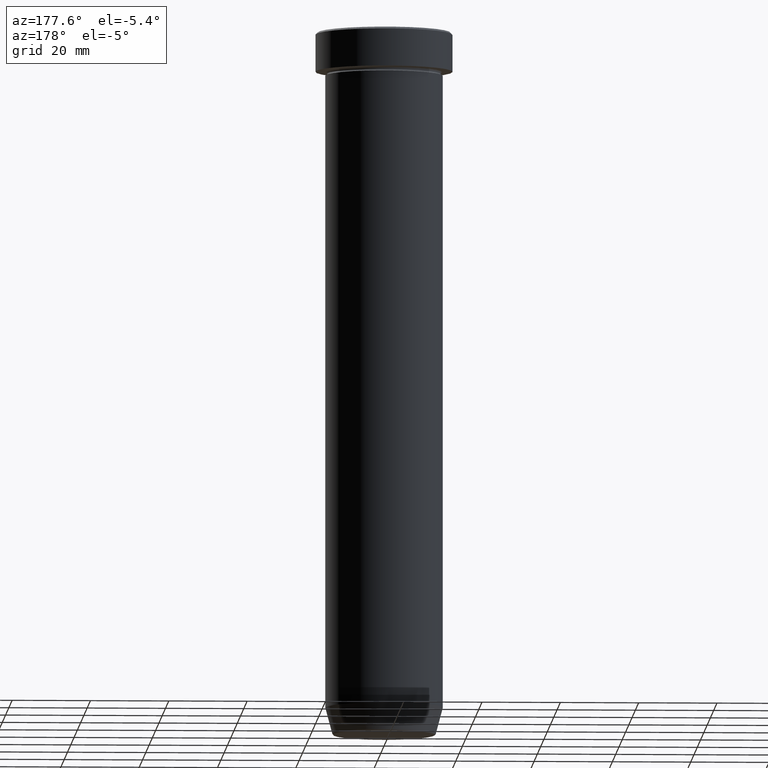
[diagram: clean part render]
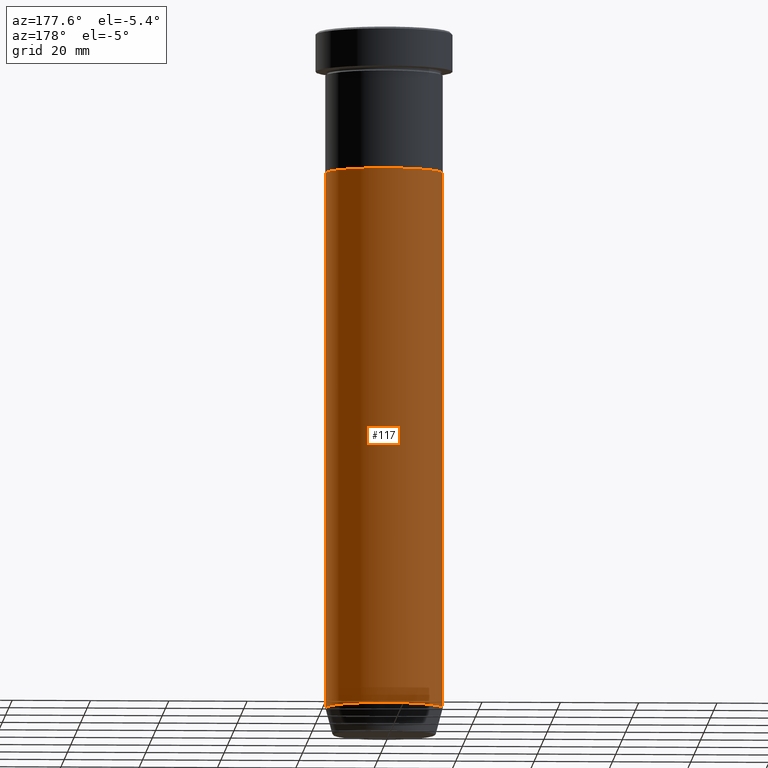
[diagram: same view with one face highlighted and labeled with its STEP entity id]
A machine part, auxiliary view. The second image highlights one B-rep face of the part: STEP entity #117.
In plain terms, the highlighted cylindrical surface (partial cylindrical patch) has radius 15 mm, axis along (-0, -0, 1).
Its self-contained STEP definition (entity closure, byte-faithful):
#6 = VERTEX_POINT ( 'NONE', #60 ) ;
#24 = FACE_OUTER_BOUND ( 'NONE', #508, .T. ) ;
#43 = DIRECTION ( 'NONE',  ( -0.000000000000000000, -0.000000000000000000, 1.000000000000000000 ) ) ;
#60 = CARTESIAN_POINT ( 'NONE',  ( 15.00000000000000000, 0.000000000000000000, -36.00000000000000000 ) ) ;
#66 = VERTEX_POINT ( 'NONE', #308 ) ;
#75 = AXIS2_PLACEMENT_3D ( 'NONE', #166, #43, #535 ) ;
#81 = VECTOR ( 'NONE', #447, 1000.000000000000000 ) ;
#95 = ORIENTED_EDGE ( 'NONE', *, *, #323, .F. ) ;
#117 = ADVANCED_FACE ( 'NONE', ( #24 ), #581, .T. ) ;
#141 = DIRECTION ( 'NONE',  ( -0.000000000000000000, -0.000000000000000000, 1.000000000000000000 ) ) ;
#147 = VECTOR ( 'NONE', #401, 1000.000000000000000 ) ;
#166 = CARTESIAN_POINT ( 'NONE',  ( 0.000000000000000000, 0.000000000000000000, -36.00000000000000000 ) ) ;
#187 = ORIENTED_EDGE ( 'NONE', *, *, #434, .F. ) ;
#212 = DIRECTION ( 'NONE',  ( 1.000000000000000000, 0.000000000000000000, 0.000000000000000000 ) ) ;
#243 = CARTESIAN_POINT ( 'NONE',  ( 0.000000000000000000, 0.000000000000000000, -173.0000000000000000 ) ) ;
#260 = ORIENTED_EDGE ( 'NONE', *, *, #349, .T. ) ;
#278 = CARTESIAN_POINT ( 'NONE',  ( -15.00000000000000000, 1.836970198721029589E-15, 0.000000000000000000 ) ) ;
#308 = CARTESIAN_POINT ( 'NONE',  ( 15.00000000000000178, 0.000000000000000000, -173.0000000000000000 ) ) ;
#313 = LINE ( 'NONE', #403, #81 ) ;
#323 = EDGE_CURVE ( 'NONE', #6, #547, #457, .T. ) ;
#331 = CARTESIAN_POINT ( 'NONE',  ( -15.00000000000000000, 1.836970198721029589E-15, -36.00000000000000000 ) ) ;
#349 = EDGE_CURVE ( 'NONE', #444, #547, #585, .T. ) ;
#373 = DIRECTION ( 'NONE',  ( 1.000000000000000000, 0.000000000000000000, 0.000000000000000000 ) ) ;
#377 = ORIENTED_EDGE ( 'NONE', *, *, #463, .T. ) ;
#401 = DIRECTION ( 'NONE',  ( -0.000000000000000000, -0.000000000000000000, 1.000000000000000000 ) ) ;
#403 = CARTESIAN_POINT ( 'NONE',  ( 15.00000000000000000, 0.000000000000000000, 0.000000000000000000 ) ) ;
#434 = EDGE_CURVE ( 'NONE', #66, #6, #313, .T. ) ;
#441 = AXIS2_PLACEMENT_3D ( 'NONE', #529, #451, #212 ) ;
#444 = VERTEX_POINT ( 'NONE', #526 ) ;
#447 = DIRECTION ( 'NONE',  ( -0.000000000000000000, -0.000000000000000000, 1.000000000000000000 ) ) ;
#451 = DIRECTION ( 'NONE',  ( -0.000000000000000000, -0.000000000000000000, 1.000000000000000000 ) ) ;
#457 = CIRCLE ( 'NONE', #75, 15.00000000000000000 ) ;
#463 = EDGE_CURVE ( 'NONE', #66, #444, #466, .T. ) ;
#466 = CIRCLE ( 'NONE', #509, 15.00000000000000178 ) ;
#508 = EDGE_LOOP ( 'NONE', ( #377, #260, #95, #187 ) ) ;
#509 = AXIS2_PLACEMENT_3D ( 'NONE', #243, #141, #373 ) ;
#526 = CARTESIAN_POINT ( 'NONE',  ( -15.00000000000000355, 1.836970198721029983E-15, -173.0000000000000000 ) ) ;
#529 = CARTESIAN_POINT ( 'NONE',  ( 0.000000000000000000, 0.000000000000000000, 0.000000000000000000 ) ) ;
#535 = DIRECTION ( 'NONE',  ( 1.000000000000000000, 0.000000000000000000, 0.000000000000000000 ) ) ;
#547 = VERTEX_POINT ( 'NONE', #331 ) ;
#581 = CYLINDRICAL_SURFACE ( 'NONE', #441, 15.00000000000000000 ) ;
#585 = LINE ( 'NONE', #278, #147 ) ;